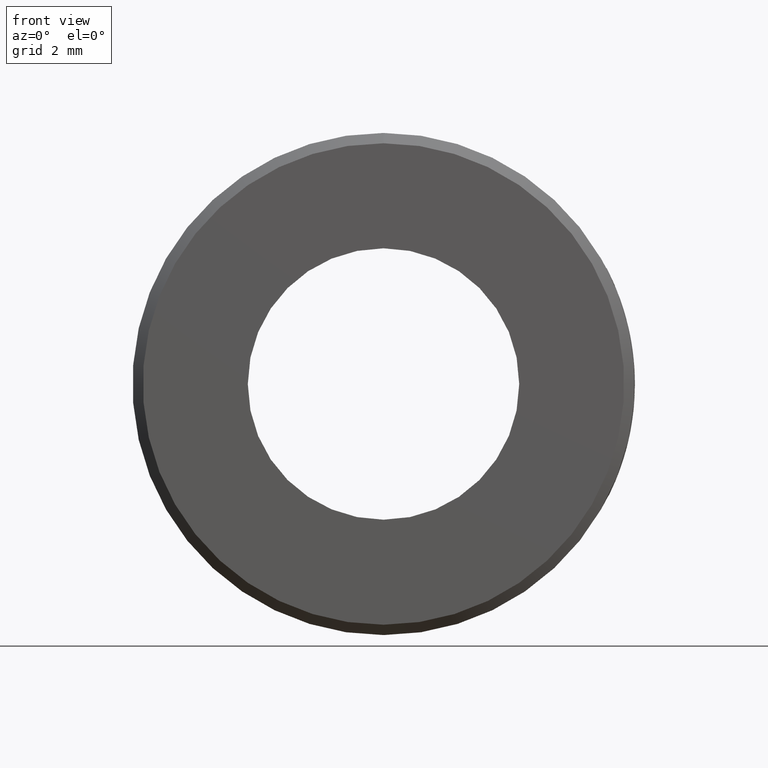
[diagram: clean part render]
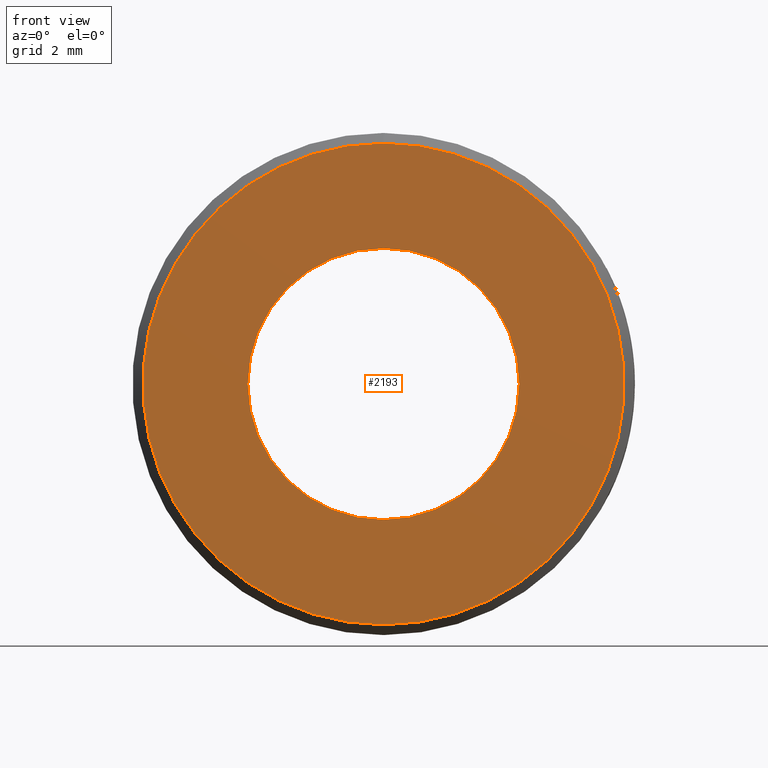
[diagram: same view with one face highlighted and labeled with its STEP entity id]
A machine part, front view. The second image highlights one B-rep face of the part: STEP entity #2193.
In plain terms, the highlighted planar face has unit normal (0, 1, 0).
Its self-contained STEP definition (entity closure, byte-faithful):
#167 = DIRECTION ( 'NONE',  ( 0.000000000000000000, 1.000000000000000000, 0.000000000000000000 ) ) ;
#176 = AXIS2_PLACEMENT_3D ( 'NONE', #697, #167, #1852 ) ;
#211 = DIRECTION ( 'NONE',  ( -0.000000000000000000, -1.000000000000000000, -0.000000000000000000 ) ) ;
#378 = ORIENTED_EDGE ( 'NONE', *, *, #1626, .T. ) ;
#400 = VERTEX_POINT ( 'NONE', #2401 ) ;
#427 = CIRCLE ( 'NONE', #1061, 8.868899999999989348 ) ;
#642 = EDGE_CURVE ( 'NONE', #2027, #1075, #427, .T. ) ;
#657 = DIRECTION ( 'NONE',  ( -0.000000000000000000, -1.000000000000000000, -0.000000000000000000 ) ) ;
#682 = DIRECTION ( 'NONE',  ( 0.000000000000000000, 0.000000000000000000, 1.000000000000000000 ) ) ;
#697 = CARTESIAN_POINT ( 'NONE',  ( 0.000000000000000000, -3.250000000000000000, 0.000000000000000000 ) ) ;
#778 = DIRECTION ( 'NONE',  ( 0.000000000000000000, 0.000000000000000000, 1.000000000000000000 ) ) ;
#813 = AXIS2_PLACEMENT_3D ( 'NONE', #1605, #2183, #2173 ) ;
#860 = EDGE_CURVE ( 'NONE', #400, #2220, #1883, .T. ) ;
#870 = CARTESIAN_POINT ( 'NONE',  ( 0.000000000000000000, -3.250000000000000000, 0.000000000000000000 ) ) ;
#881 = ORIENTED_EDGE ( 'NONE', *, *, #1047, .T. ) ;
#1006 = CIRCLE ( 'NONE', #1091, 8.868899999999989348 ) ;
#1047 = EDGE_CURVE ( 'NONE', #2220, #400, #1207, .T. ) ;
#1061 = AXIS2_PLACEMENT_3D ( 'NONE', #870, #657, #682 ) ;
#1075 = VERTEX_POINT ( 'NONE', #1737 ) ;
#1091 = AXIS2_PLACEMENT_3D ( 'NONE', #2290, #211, #2261 ) ;
#1100 = FACE_BOUND ( 'NONE', #2293, .T. ) ;
#1173 = CARTESIAN_POINT ( 'NONE',  ( 0.000000000000000000, -3.250000000000000000, 0.000000000000000000 ) ) ;
#1207 = CIRCLE ( 'NONE', #1439, 5.000000000000000000 ) ;
#1439 = AXIS2_PLACEMENT_3D ( 'NONE', #1173, #1934, #778 ) ;
#1481 = FACE_OUTER_BOUND ( 'NONE', #1718, .T. ) ;
#1499 = PLANE ( 'NONE',  #176 ) ;
#1605 = CARTESIAN_POINT ( 'NONE',  ( 0.000000000000000000, -3.250000000000000000, 0.000000000000000000 ) ) ;
#1626 = EDGE_CURVE ( 'NONE', #1075, #2027, #1006, .T. ) ;
#1718 = EDGE_LOOP ( 'NONE', ( #2224, #378 ) ) ;
#1737 = CARTESIAN_POINT ( 'NONE',  ( 1.109462644453547969E-15, -3.250000000000000000, -8.868899999999989348 ) ) ;
#1852 = DIRECTION ( 'NONE',  ( 0.000000000000000000, -0.000000000000000000, 1.000000000000000000 ) ) ;
#1883 = CIRCLE ( 'NONE', #813, 5.000000000000000000 ) ;
#1934 = DIRECTION ( 'NONE',  ( 0.000000000000000000, 1.000000000000000000, 0.000000000000000000 ) ) ;
#2027 = VERTEX_POINT ( 'NONE', #2163 ) ;
#2163 = CARTESIAN_POINT ( 'NONE',  ( 0.000000000000000000, -3.250000000000000000, 8.868899999999989348 ) ) ;
#2173 = DIRECTION ( 'NONE',  ( 0.000000000000000000, 0.000000000000000000, 1.000000000000000000 ) ) ;
#2183 = DIRECTION ( 'NONE',  ( 0.000000000000000000, 1.000000000000000000, 0.000000000000000000 ) ) ;
#2193 = ADVANCED_FACE ( 'NONE', ( #1481, #1100 ), #1499, .F. ) ;
#2220 = VERTEX_POINT ( 'NONE', #2236 ) ;
#2224 = ORIENTED_EDGE ( 'NONE', *, *, #642, .T. ) ;
#2227 = ORIENTED_EDGE ( 'NONE', *, *, #860, .T. ) ;
#2236 = CARTESIAN_POINT ( 'NONE',  ( 6.123233995736765296E-16, -3.250000000000000000, -5.000000000000000000 ) ) ;
#2261 = DIRECTION ( 'NONE',  ( 0.000000000000000000, 0.000000000000000000, 1.000000000000000000 ) ) ;
#2290 = CARTESIAN_POINT ( 'NONE',  ( 0.000000000000000000, -3.250000000000000000, 0.000000000000000000 ) ) ;
#2293 = EDGE_LOOP ( 'NONE', ( #2227, #881 ) ) ;
#2401 = CARTESIAN_POINT ( 'NONE',  ( 0.000000000000000000, -3.250000000000000000, 5.000000000000000000 ) ) ;